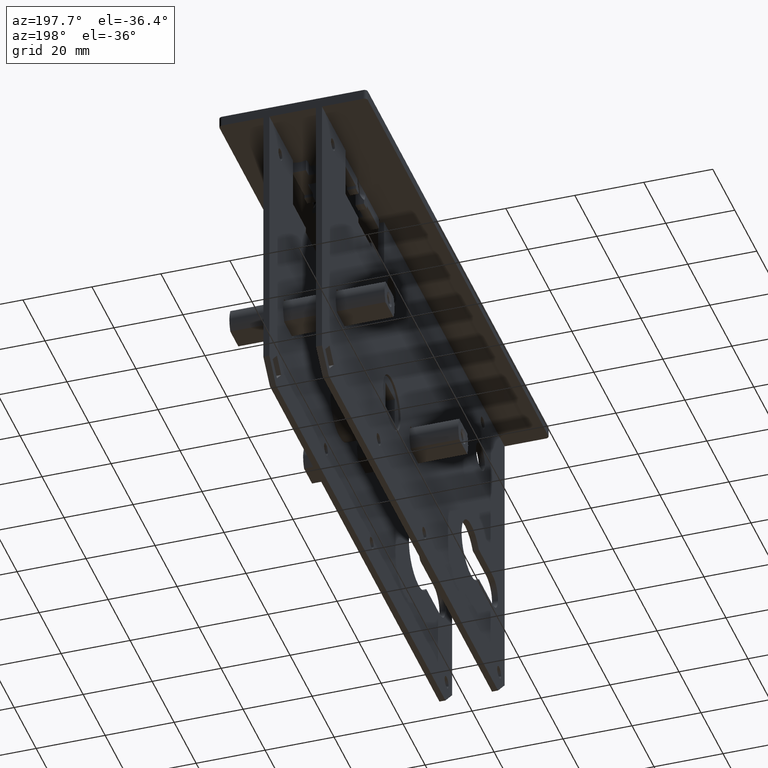
[diagram: clean part render]
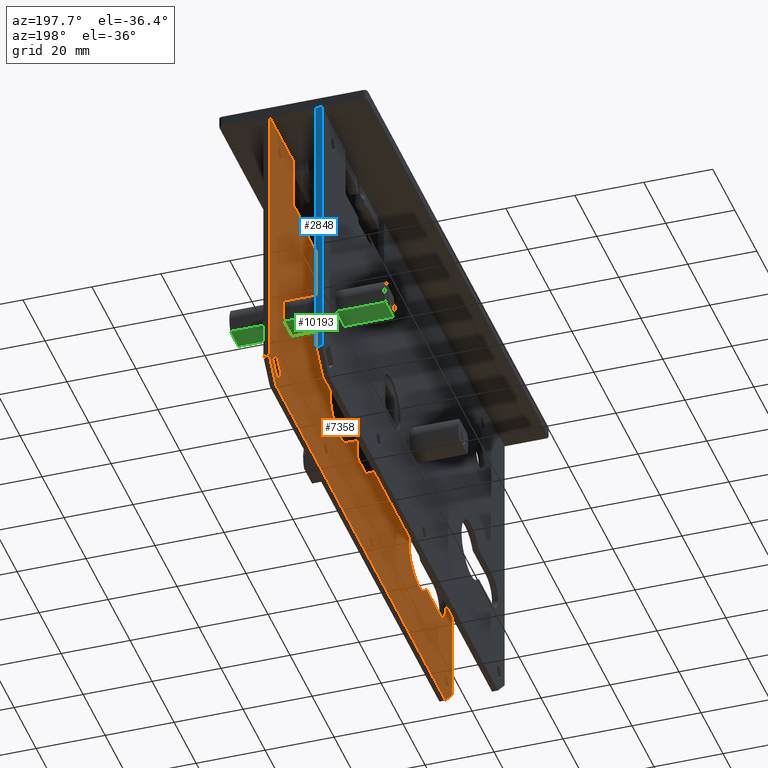
[diagram: same view with three faces highlighted in distinct colors, each labeled with its STEP entity id]
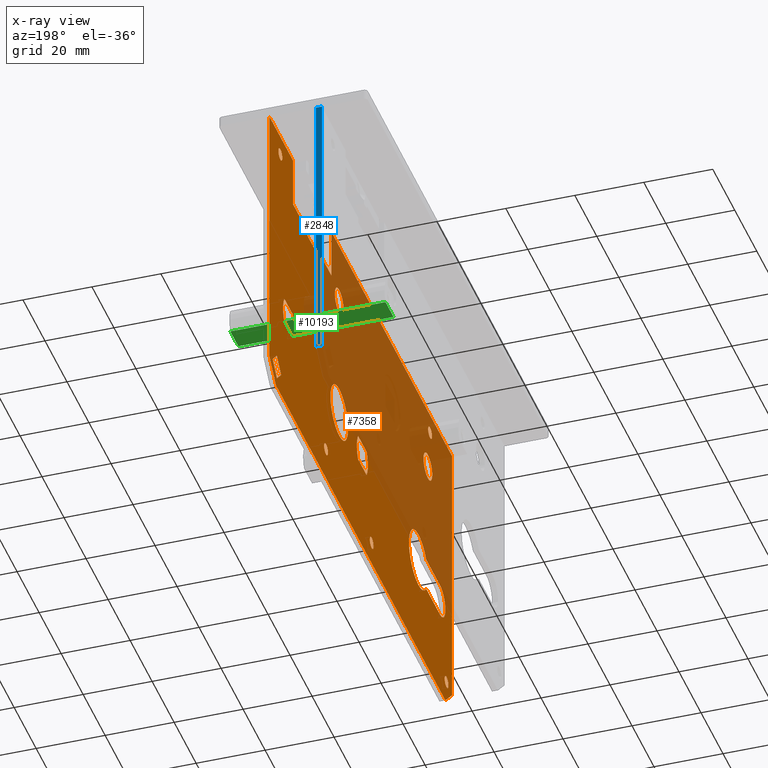
[diagram: x-ray of the same camera — body ghosted, the three highlighted faces saturated]
A machine part, auxiliary view with three faces highlighted in distinct colors.
The next image is the same camera in x-ray (body ghosted, the three faces saturated) — at least one of them is partly hidden behind the body in this view.
Their STEP definitions:

[orange] entity #7358 — the highlighted planar face has unit normal (1, -0, 0).
#51 = CARTESIAN_POINT ( 'NONE',  ( 6.749999999999965361, 23.49999999999997513, -20.50000000000000355 ) ) ;
#150 = VERTEX_POINT ( 'NONE', #4307 ) ;
#381 = LINE ( 'NONE', #5803, #14709 ) ;
#389 = CARTESIAN_POINT ( 'NONE',  ( 6.749999999999970690, 49.99500000000033850, -89.50000000000014211 ) ) ;
#474 = EDGE_CURVE ( 'NONE', #15892, #8402, #12096, .T. ) ;
#490 = EDGE_CURVE ( 'NONE', #2009, #9290, #9236, .T. ) ;
#494 = CARTESIAN_POINT ( 'NONE',  ( 6.749999999999975131, 62.49999999999997158, -58.49999999999999289 ) ) ;
#606 = VECTOR ( 'NONE', #4126, 1000.000000000000000 ) ;
#657 = VERTEX_POINT ( 'NONE', #1790 ) ;
#678 = CARTESIAN_POINT ( 'NONE',  ( 6.749999999999971578, 76.11091270347397142, -78.72182540694797126 ) ) ;
#795 = VERTEX_POINT ( 'NONE', #4496 ) ;
#893 = CARTESIAN_POINT ( 'NONE',  ( 6.749999999999936939, -71.90000000000001990, -53.45000000000000284 ) ) ;
#905 = CARTESIAN_POINT ( 'NONE',  ( 6.749999999999974243, 61.49500000000001876, -89.50000000000000000 ) ) ;
#986 = AXIS2_PLACEMENT_3D ( 'NONE', #19528, #13232, #8671 ) ;
#1052 = CARTESIAN_POINT ( 'NONE',  ( 6.749999999999979572, 82.99999999999998579, -1.500000000000000000 ) ) ;
#1063 = ORIENTED_EDGE ( 'NONE', *, *, #12396, .T. ) ;
#1261 = CIRCLE ( 'NONE', #13779, 1.750000000000001554 ) ;
#1327 = EDGE_CURVE ( 'NONE', #3062, #11553, #6106, .T. ) ;
#1359 = CARTESIAN_POINT ( 'NONE',  ( 6.749999999999971578, 26.49500000000001876, -1.500000000000000000 ) ) ;
#1414 = PLANE ( 'NONE',  #12225 ) ;
#1440 = DIRECTION ( 'NONE',  ( 1.000000000000000000, -2.823311865109897276E-16, 0.000000000000000000 ) ) ;
#1454 = CARTESIAN_POINT ( 'NONE',  ( 6.749999999999960920, -83.00000000000001421, -1.500000000000000000 ) ) ;
#1478 = CARTESIAN_POINT ( 'NONE',  ( 6.749999999999967137, 37.99500000000001876, -89.50000000000000000 ) ) ;
#1527 = VERTEX_POINT ( 'NONE', #13555 ) ;
#1532 = EDGE_LOOP ( 'NONE', ( #8050, #9930, #16112, #18015, #16478, #1572, #3832, #16464, #11852, #3412, #16233, #4765, #11090, #9143 ) ) ;
#1572 = ORIENTED_EDGE ( 'NONE', *, *, #9806, .F. ) ;
#1718 = DIRECTION ( 'NONE',  ( 1.000000000000000000, -2.823311865109897276E-16, 0.000000000000000000 ) ) ;
#1750 = CARTESIAN_POINT ( 'NONE',  ( 6.749999999999980460, 84.94454364826299297, -87.55545635173699281 ) ) ;
#1760 = VECTOR ( 'NONE', #11364, 1000.000000000000000 ) ;
#1778 = LINE ( 'NONE', #905, #6083 ) ;
#1790 = CARTESIAN_POINT ( 'NONE',  ( 6.749999999999978684, 74.75000000000000000, -7.500000000000007105 ) ) ;
#1845 = EDGE_CURVE ( 'NONE', #8527, #8527, #9919, .T. ) ;
#1888 = CARTESIAN_POINT ( 'NONE',  ( 6.749999999999971578, 26.49500000000001876, -1.500000000000000000 ) ) ;
#1942 = DIRECTION ( 'NONE',  ( 9.505768168282422298E-17, 1.000000000000000000, -0.000000000000000000 ) ) ;
#1957 = EDGE_CURVE ( 'NONE', #657, #657, #16555, .T. ) ;
#1962 = CARTESIAN_POINT ( 'NONE',  ( 6.749999999999979572, 82.99999999999997158, -18.09999999999999076 ) ) ;
#1990 = EDGE_LOOP ( 'NONE', ( #4938 ) ) ;
#2009 = VERTEX_POINT ( 'NONE', #10072 ) ;
#2057 = EDGE_CURVE ( 'NONE', #4301, #8471, #1778, .T. ) ;
#2114 = DIRECTION ( 'NONE',  ( 1.000000000000000000, -2.823311865109897276E-16, 0.000000000000000000 ) ) ;
#2165 = CARTESIAN_POINT ( 'NONE',  ( 6.749999999999975131, 500000.0000000000582, -16.50000000000000000 ) ) ;
#2177 = ORIENTED_EDGE ( 'NONE', *, *, #9465, .T. ) ;
#2237 = CIRCLE ( 'NONE', #14282, 8.000000000000007105 ) ;
#2314 = DIRECTION ( 'NONE',  ( -0.000000000000000000, -0.000000000000000000, 1.000000000000000000 ) ) ;
#2380 = DIRECTION ( 'NONE',  ( 4.956352788505158337E-16, 1.000000000000000000, 0.000000000000000000 ) ) ;
#2414 = CARTESIAN_POINT ( 'NONE',  ( 6.749999999999960920, -83.00000000000001421, -83.49999999999994316 ) ) ;
#2415 = DIRECTION ( 'NONE',  ( -1.996382965223647656E-16, -0.7071067811865474617, -0.7071067811865474617 ) ) ;
#2418 = FACE_BOUND ( 'NONE', #6755, .T. ) ;
#2455 = CARTESIAN_POINT ( 'NONE',  ( 6.749999999999933387, -71.90000000000000568, -63.54999999999999716 ) ) ;
#2493 = EDGE_CURVE ( 'NONE', #8471, #15010, #14440, .T. ) ;
#2542 = VERTEX_POINT ( 'NONE', #7417 ) ;
#2611 = DIRECTION ( 'NONE',  ( 2.823311865109897276E-16, 1.000000000000000000, 1.766429458238740716E-15 ) ) ;
#2766 = ORIENTED_EDGE ( 'NONE', *, *, #14645, .T. ) ;
#2783 = EDGE_CURVE ( 'NONE', #150, #13892, #6335, .T. ) ;
#2807 = ORIENTED_EDGE ( 'NONE', *, *, #17330, .T. ) ;
#2907 = FACE_BOUND ( 'NONE', #7556, .T. ) ;
#3003 = DIRECTION ( 'NONE',  ( 2.823311865109897276E-16, 1.000000000000000000, 0.000000000000000000 ) ) ;
#3062 = VERTEX_POINT ( 'NONE', #3238 ) ;
#3100 = CARTESIAN_POINT ( 'NONE',  ( 6.749999999999941380, -61.25000000000001421, -7.500000000000007105 ) ) ;
#3184 = DIRECTION ( 'NONE',  ( 0.000000000000000000, 0.000000000000000000, -1.000000000000000000 ) ) ;
#3197 = CARTESIAN_POINT ( 'NONE',  ( 6.749999999999978684, 76.99999999999995737, -89.50000000000000000 ) ) ;
#3223 = ORIENTED_EDGE ( 'NONE', *, *, #19527, .T. ) ;
#3238 = CARTESIAN_POINT ( 'NONE',  ( 6.749999999999976907, 72.22182540694797126, -82.61091270347398563 ) ) ;
#3304 = EDGE_CURVE ( 'NONE', #795, #19014, #2237, .T. ) ;
#3311 = CARTESIAN_POINT ( 'NONE',  ( 6.749999999999964473, 19.49999999999997513, -20.50000000000000355 ) ) ;
#3370 = CARTESIAN_POINT ( 'NONE',  ( 6.749999999999979572, 82.99999999999998579, -53.45000000000000284 ) ) ;
#3375 = EDGE_CURVE ( 'NONE', #11553, #19650, #11809, .T. ) ;
#3412 = ORIENTED_EDGE ( 'NONE', *, *, #14162, .T. ) ;
#3591 = DIRECTION ( 'NONE',  ( 4.956352788505173129E-16, 1.000000000000000000, 0.000000000000000000 ) ) ;
#3599 = CARTESIAN_POINT ( 'NONE',  ( 6.749999999999936939, -78.00000000000002842, -82.49999999999998579 ) ) ;
#3633 = CARTESIAN_POINT ( 'NONE',  ( 6.749999999999975131, 500000.0000000000582, -16.50000000000000000 ) ) ;
#3686 = LINE ( 'NONE', #1478, #13727 ) ;
#3700 = VERTEX_POINT ( 'NONE', #3197 ) ;
#3712 = CIRCLE ( 'NONE', #17933, 4.000000000000000000 ) ;
#3732 = DIRECTION ( 'NONE',  ( -6.721593132179719275E-17, -0.7071067811865466846, 0.7071067811865483499 ) ) ;
#3778 = DIRECTION ( 'NONE',  ( 1.000000000000000000, -2.823311865109897276E-16, 0.000000000000000000 ) ) ;
#3782 = CIRCLE ( 'NONE', #8613, 1.750000000000001554 ) ;
#3815 = EDGE_CURVE ( 'NONE', #8651, #14776, #5810, .T. ) ;
#3832 = ORIENTED_EDGE ( 'NONE', *, *, #7121, .T. ) ;
#4000 = CARTESIAN_POINT ( 'NONE',  ( 6.749999999999933387, -59.52281994643179530, -53.45000000000000284 ) ) ;
#4034 = ORIENTED_EDGE ( 'NONE', *, *, #3375, .T. ) ;
#4069 = LINE ( 'NONE', #1962, #13151 ) ;
#4126 = DIRECTION ( 'NONE',  ( 2.823311865109897276E-16, 1.000000000000000000, -0.000000000000000000 ) ) ;
#4133 = VECTOR ( 'NONE', #4781, 1000.000000000000000 ) ;
#4157 = LINE ( 'NONE', #1750, #15864 ) ;
#4162 = EDGE_LOOP ( 'NONE', ( #8602, #15487, #4368, #9037 ) ) ;
#4301 = VERTEX_POINT ( 'NONE', #10220 ) ;
#4307 = CARTESIAN_POINT ( 'NONE',  ( 6.749999999999954703, -5.428203230275513214, -54.49999999999998579 ) ) ;
#4353 = AXIS2_PLACEMENT_3D ( 'NONE', #494, #3778, #9719 ) ;
#4368 = ORIENTED_EDGE ( 'NONE', *, *, #12690, .T. ) ;
#4496 = CARTESIAN_POINT ( 'NONE',  ( 6.749999999999974243, 61.57179676972446458, -54.49999999999999289 ) ) ;
#4505 = CARTESIAN_POINT ( 'NONE',  ( 6.749999999999960920, -83.00000000000001421, -89.50000000000000000 ) ) ;
#4565 = CARTESIAN_POINT ( 'NONE',  ( 6.749999999999979572, 82.99999999999998579, -83.49999999999992895 ) ) ;
#4606 = EDGE_LOOP ( 'NONE', ( #3223 ) ) ;
#4610 = CARTESIAN_POINT ( 'NONE',  ( 6.749999999999940492, -61.00000000000001421, -20.50000000000000355 ) ) ;
#4710 = DIRECTION ( 'NONE',  ( -1.996382965223647656E-16, -0.7071067811865474617, 0.7071067811865474617 ) ) ;
#4739 = CARTESIAN_POINT ( 'NONE',  ( 6.749999999999978684, 68.49999999999997158, -58.49999999999999289 ) ) ;
#4765 = ORIENTED_EDGE ( 'NONE', *, *, #474, .F. ) ;
#4781 = DIRECTION ( 'NONE',  ( -1.224416343102500483E-30, -4.336808689942016158E-15, 1.000000000000000000 ) ) ;
#4852 = CIRCLE ( 'NONE', #16770, 1.749999999999996447 ) ;
#4938 = ORIENTED_EDGE ( 'NONE', *, *, #5134, .T. ) ;
#5011 = LINE ( 'NONE', #3633, #7870 ) ;
#5134 = EDGE_CURVE ( 'NONE', #17808, #17808, #3712, .T. ) ;
#5152 = CARTESIAN_POINT ( 'NONE',  ( 6.749999999999957367, -4.500000000000025757, -58.50000000000000000 ) ) ;
#5180 = DIRECTION ( 'NONE',  ( 3.435095992033281961E-16, 1.000000000000000000, 0.000000000000000000 ) ) ;
#5204 = LINE ( 'NONE', #1888, #6875 ) ;
#5297 = EDGE_CURVE ( 'NONE', #9033, #17756, #10387, .T. ) ;
#5367 = DIRECTION ( 'NONE',  ( 1.000000000000000000, -2.823311865109897276E-16, 0.000000000000000000 ) ) ;
#5481 = CARTESIAN_POINT ( 'NONE',  ( 6.749999999999968026, 69.42820323027548568, -54.49999999999999289 ) ) ;
#5611 = DIRECTION ( 'NONE',  ( -0.000000000000000000, -1.000000000000000000, -0.000000000000000000 ) ) ;
#5703 = EDGE_CURVE ( 'NONE', #7098, #7098, #1261, .T. ) ;
#5798 = DIRECTION ( 'NONE',  ( -2.823311865109897276E-16, -1.000000000000000000, 8.832147291193703580E-16 ) ) ;
#5803 = CARTESIAN_POINT ( 'NONE',  ( 6.749999999999979572, 82.99999999999998579, -89.50000000000000000 ) ) ;
#5810 = LINE ( 'NONE', #389, #4133 ) ;
#5825 = CARTESIAN_POINT ( 'NONE',  ( 6.749999999999979572, 82.99999999999998579, -89.50000000000000000 ) ) ;
#5859 = VECTOR ( 'NONE', #12125, 1000.000000000000000 ) ;
#5912 = VECTOR ( 'NONE', #10505, 1000.000000000000000 ) ;
#6005 = CARTESIAN_POINT ( 'NONE',  ( 6.749999999999964473, 19.49999999999997513, -58.50000000000000000 ) ) ;
#6015 = FACE_BOUND ( 'NONE', #19718, .T. ) ;
#6083 = VECTOR ( 'NONE', #2314, 1000.000000000000000 ) ;
#6106 = LINE ( 'NONE', #15737, #14242 ) ;
#6219 = CARTESIAN_POINT ( 'NONE',  ( 6.749999999999979572, 82.99999999999998579, -1.500000000000000000 ) ) ;
#6249 = VERTEX_POINT ( 'NONE', #4000 ) ;
#6335 = CIRCLE ( 'NONE', #12698, 8.000000000000000000 ) ;
#6505 = CARTESIAN_POINT ( 'NONE',  ( 6.749999999999946709, 2.428203230275482127, -54.49999999999999289 ) ) ;
#6577 = LINE ( 'NONE', #13482, #10856 ) ;
#6755 = EDGE_LOOP ( 'NONE', ( #4034, #2766, #1063, #16905 ) ) ;
#6800 = LINE ( 'NONE', #3370, #1760 ) ;
#6846 = CARTESIAN_POINT ( 'NONE',  ( 6.749999999999968026, 49.99500000000001876, -16.49999999999999645 ) ) ;
#6875 = VECTOR ( 'NONE', #1942, 1000.000000000000000 ) ;
#6907 = DIRECTION ( 'NONE',  ( 3.252606517456513302E-16, 1.000000000000000000, 0.000000000000000000 ) ) ;
#6921 = AXIS2_PLACEMENT_3D ( 'NONE', #14587, #17621, #5180 ) ;
#7050 = CIRCLE ( 'NONE', #16118, 8.000000000000000000 ) ;
#7098 = VERTEX_POINT ( 'NONE', #15388 ) ;
#7121 = EDGE_CURVE ( 'NONE', #16747, #3700, #15120, .T. ) ;
#7270 = CARTESIAN_POINT ( 'NONE',  ( 6.749999999999933387, -59.52281994643179530, -63.55000000000001137 ) ) ;
#7358 = ADVANCED_FACE ( 'NONE', ( #8146, #19160, #11729, #13428, #2907, #6015, #11028, #16972, #18665, #14619, #13164, #2418, #18170 ), #1414, .F. ) ;
#7417 = CARTESIAN_POINT ( 'NONE',  ( 6.749999999999968914, 33.24999999999997158, -79.50000000000000000 ) ) ;
#7556 = EDGE_LOOP ( 'NONE', ( #8702 ) ) ;
#7564 = VECTOR ( 'NONE', #14345, 1000.000000000000000 ) ;
#7594 = AXIS2_PLACEMENT_3D ( 'NONE', #12550, #12999, #2380 ) ;
#7639 = CARTESIAN_POINT ( 'NONE',  ( 6.749999999999974243, 61.49500000000001876, -1.500000000000000000 ) ) ;
#7677 = CARTESIAN_POINT ( 'NONE',  ( 6.749999999999954703, -8.250000000000026645, -82.49999999999998579 ) ) ;
#7681 = VERTEX_POINT ( 'NONE', #5481 ) ;
#7684 = DIRECTION ( 'NONE',  ( 1.000000000000000000, -2.823311865109897276E-16, 0.000000000000000000 ) ) ;
#7770 = LINE ( 'NONE', #4505, #5859 ) ;
#7870 = VECTOR ( 'NONE', #5611, 1000.000000000000000 ) ;
#7910 = ORIENTED_EDGE ( 'NONE', *, *, #12301, .T. ) ;
#7944 = EDGE_LOOP ( 'NONE', ( #2807, #18661, #9471, #15131 ) ) ;
#7957 = LINE ( 'NONE', #2165, #17713 ) ;
#7981 = EDGE_LOOP ( 'NONE', ( #12151, #2177, #13695, #7910 ) ) ;
#7985 = EDGE_CURVE ( 'NONE', #1527, #8651, #4069, .T. ) ;
#8050 = ORIENTED_EDGE ( 'NONE', *, *, #7985, .T. ) ;
#8146 = FACE_BOUND ( 'NONE', #1990, .T. ) ;
#8249 = CARTESIAN_POINT ( 'NONE',  ( 6.749999999999953815, -10.00000000000002309, -82.49999999999998579 ) ) ;
#8364 = DIRECTION ( 'NONE',  ( 1.000000000000000000, -2.823311865109897276E-16, 0.000000000000000000 ) ) ;
#8399 = EDGE_CURVE ( 'NONE', #7681, #795, #8597, .T. ) ;
#8402 = VERTEX_POINT ( 'NONE', #1359 ) ;
#8446 = ORIENTED_EDGE ( 'NONE', *, *, #1957, .T. ) ;
#8471 = VERTEX_POINT ( 'NONE', #7639 ) ;
#8527 = VERTEX_POINT ( 'NONE', #14900 ) ;
#8547 = ORIENTED_EDGE ( 'NONE', *, *, #1845, .T. ) ;
#8597 = LINE ( 'NONE', #10462, #16944 ) ;
#8602 = ORIENTED_EDGE ( 'NONE', *, *, #16276, .T. ) ;
#8613 = AXIS2_PLACEMENT_3D ( 'NONE', #9373, #13936, #11037 ) ;
#8651 = VERTEX_POINT ( 'NONE', #11104 ) ;
#8671 = DIRECTION ( 'NONE',  ( 3.008190998803709590E-16, 1.000000000000000000, 0.000000000000000000 ) ) ;
#8702 = ORIENTED_EDGE ( 'NONE', *, *, #5703, .T. ) ;
#8787 = CARTESIAN_POINT ( 'NONE',  ( 6.749999999999979572, 83.00000000000001421, -54.50000000000006395 ) ) ;
#9033 = VERTEX_POINT ( 'NONE', #9518 ) ;
#9037 = ORIENTED_EDGE ( 'NONE', *, *, #2783, .T. ) ;
#9143 = ORIENTED_EDGE ( 'NONE', *, *, #17625, .T. ) ;
#9209 = DIRECTION ( 'NONE',  ( 2.168404344971006896E-16, 1.000000000000000000, 0.000000000000000000 ) ) ;
#9236 = LINE ( 'NONE', #11239, #17567 ) ;
#9290 = VERTEX_POINT ( 'NONE', #2414 ) ;
#9294 = EDGE_CURVE ( 'NONE', #2542, #2542, #11650, .T. ) ;
#9350 = DIRECTION ( 'NONE',  ( 2.168404344971008868E-16, 1.000000000000000000, 0.000000000000000000 ) ) ;
#9373 = CARTESIAN_POINT ( 'NONE',  ( 6.749999999999940492, -63.00000000000001421, -7.500000000000007105 ) ) ;
#9465 = EDGE_CURVE ( 'NONE', #12713, #6249, #18319, .T. ) ;
#9471 = ORIENTED_EDGE ( 'NONE', *, *, #8399, .T. ) ;
#9475 = DIRECTION ( 'NONE',  ( 3.252606517456510344E-16, 1.000000000000000000, 0.000000000000000000 ) ) ;
#9518 = CARTESIAN_POINT ( 'NONE',  ( 6.749999999999946709, 2.428203230275483016, -62.50000000000000000 ) ) ;
#9719 = DIRECTION ( 'NONE',  ( 3.252606517456510344E-16, 1.000000000000000000, 0.000000000000000000 ) ) ;
#9806 = EDGE_CURVE ( 'NONE', #16747, #15010, #17327, .T. ) ;
#9869 = LINE ( 'NONE', #8787, #12250 ) ;
#9919 = CIRCLE ( 'NONE', #17792, 4.000000000000003553 ) ;
#9930 = ORIENTED_EDGE ( 'NONE', *, *, #3815, .T. ) ;
#10053 = CARTESIAN_POINT ( 'NONE',  ( 6.749999999999978684, 76.99999999999995737, -89.50000000000000000 ) ) ;
#10069 = VERTEX_POINT ( 'NONE', #2455 ) ;
#10072 = CARTESIAN_POINT ( 'NONE',  ( 6.749999999999961808, -76.99999999999998579, -89.50000000000000000 ) ) ;
#10220 = CARTESIAN_POINT ( 'NONE',  ( 6.749999999999975131, 61.49500000009311407, -16.50000000000000000 ) ) ;
#10226 = AXIS2_PLACEMENT_3D ( 'NONE', #15979, #8364, #14787 ) ;
#10253 = ORIENTED_EDGE ( 'NONE', *, *, #11284, .T. ) ;
#10310 = EDGE_LOOP ( 'NONE', ( #10253 ) ) ;
#10366 = LINE ( 'NONE', #10370, #12026 ) ;
#10370 = CARTESIAN_POINT ( 'NONE',  ( 6.749999999999977796, 74.16636905521096423, -80.66636905521097844 ) ) ;
#10387 = CIRCLE ( 'NONE', #18607, 8.000000000000000000 ) ;
#10392 = EDGE_LOOP ( 'NONE', ( #8547 ) ) ;
#10462 = CARTESIAN_POINT ( 'NONE',  ( 6.749999999999979572, 82.99999999999998579, -54.49999999999999289 ) ) ;
#10476 = VERTEX_POINT ( 'NONE', #3100 ) ;
#10502 = EDGE_LOOP ( 'NONE', ( #8446 ) ) ;
#10505 = DIRECTION ( 'NONE',  ( -0.000000000000000000, -0.000000000000000000, 1.000000000000000000 ) ) ;
#10786 = CARTESIAN_POINT ( 'NONE',  ( 6.749999999999968026, 76.11091270347397142, -86.50000000000000000 ) ) ;
#10809 = CARTESIAN_POINT ( 'NONE',  ( 6.749999999999978684, 78.05545635173697860, -84.55545635173699281 ) ) ;
#10856 = VECTOR ( 'NONE', #3003, 1000.000000000000000 ) ;
#11028 = FACE_BOUND ( 'NONE', #11260, .T. ) ;
#11037 = DIRECTION ( 'NONE',  ( 4.956352788505158337E-16, 1.000000000000000000, 0.000000000000000000 ) ) ;
#11060 = CIRCLE ( 'NONE', #6921, 5.049999999999998934 ) ;
#11079 = DIRECTION ( 'NONE',  ( 3.252606517456513302E-16, 1.000000000000000000, 0.000000000000000000 ) ) ;
#11090 = ORIENTED_EDGE ( 'NONE', *, *, #16250, .F. ) ;
#11104 = CARTESIAN_POINT ( 'NONE',  ( 6.749999999999960920, 49.99500000000002586, -18.09999999999999787 ) ) ;
#11230 = EDGE_CURVE ( 'NONE', #2009, #3700, #381, .T. ) ;
#11239 = CARTESIAN_POINT ( 'NONE',  ( 6.749999999999961808, -76.99999999999998579, -89.50000000000000000 ) ) ;
#11260 = EDGE_LOOP ( 'NONE', ( #11614 ) ) ;
#11284 = EDGE_CURVE ( 'NONE', #13594, #13594, #7050, .T. ) ;
#11364 = DIRECTION ( 'NONE',  ( -2.823311865109897276E-16, -1.000000000000000000, 0.000000000000000000 ) ) ;
#11487 = CARTESIAN_POINT ( 'NONE',  ( 6.749999999999957367, 1.499999999999974465, -58.50000000000000000 ) ) ;
#11553 = VERTEX_POINT ( 'NONE', #10786 ) ;
#11614 = ORIENTED_EDGE ( 'NONE', *, *, #9294, .T. ) ;
#11650 = CIRCLE ( 'NONE', #10226, 1.749999999999994671 ) ;
#11709 = DIRECTION ( 'NONE',  ( -1.996382965223642972E-16, -0.7071067811865459074, -0.7071067811865491270 ) ) ;
#11729 = FACE_BOUND ( 'NONE', #7981, .T. ) ;
#11809 = LINE ( 'NONE', #10809, #13973 ) ;
#11852 = ORIENTED_EDGE ( 'NONE', *, *, #490, .T. ) ;
#12026 = VECTOR ( 'NONE', #2415, 1000.000000000000114 ) ;
#12096 = LINE ( 'NONE', #15989, #7564 ) ;
#12125 = DIRECTION ( 'NONE',  ( -0.000000000000000000, -0.000000000000000000, 1.000000000000000000 ) ) ;
#12151 = ORIENTED_EDGE ( 'NONE', *, *, #17697, .T. ) ;
#12225 = AXIS2_PLACEMENT_3D ( 'NONE', #16892, #12231, #13801 ) ;
#12231 = DIRECTION ( 'NONE',  ( 1.000000000000000000, -2.823311865109897276E-16, 0.000000000000000000 ) ) ;
#12250 = VECTOR ( 'NONE', #5798, 1000.000000000000000 ) ;
#12301 = EDGE_CURVE ( 'NONE', #14508, #10069, #11060, .T. ) ;
#12396 = EDGE_CURVE ( 'NONE', #16602, #3062, #10366, .T. ) ;
#12550 = CARTESIAN_POINT ( 'NONE',  ( 6.749999999999978684, 73.00000000000000000, -7.500000000000007105 ) ) ;
#12690 = EDGE_CURVE ( 'NONE', #17756, #150, #9869, .T. ) ;
#12698 = AXIS2_PLACEMENT_3D ( 'NONE', #11487, #5367, #6907 ) ;
#12713 = VERTEX_POINT ( 'NONE', #7270 ) ;
#12999 = DIRECTION ( 'NONE',  ( 1.000000000000000000, -2.823311865109897276E-16, 0.000000000000000000 ) ) ;
#13151 = VECTOR ( 'NONE', #14035, 1000.000000000000000 ) ;
#13164 = FACE_BOUND ( 'NONE', #4162, .T. ) ;
#13177 = EDGE_CURVE ( 'NONE', #18662, #7681, #18191, .T. ) ;
#13232 = DIRECTION ( 'NONE',  ( 1.000000000000000000, -2.823311865109897276E-16, 0.000000000000000000 ) ) ;
#13428 = FACE_BOUND ( 'NONE', #10310, .T. ) ;
#13482 = CARTESIAN_POINT ( 'NONE',  ( 6.749999999999979572, 82.99999999999998579, -62.49999999999998579 ) ) ;
#13533 = VERTEX_POINT ( 'NONE', #1454 ) ;
#13555 = CARTESIAN_POINT ( 'NONE',  ( 6.749999999999960920, 37.99500000000001876, -18.10000000000000142 ) ) ;
#13594 = VERTEX_POINT ( 'NONE', #17871 ) ;
#13601 = CARTESIAN_POINT ( 'NONE',  ( 6.749999999999971578, 79.99999999999998579, -82.61091270347398563 ) ) ;
#13695 = ORIENTED_EDGE ( 'NONE', *, *, #14758, .T. ) ;
#13727 = VECTOR ( 'NONE', #3184, 1000.000000000000000 ) ;
#13779 = AXIS2_PLACEMENT_3D ( 'NONE', #3599, #2114, #17430 ) ;
#13801 = DIRECTION ( 'NONE',  ( 2.823311865109897276E-16, 1.000000000000000000, 0.000000000000000000 ) ) ;
#13892 = VERTEX_POINT ( 'NONE', #18179 ) ;
#13936 = DIRECTION ( 'NONE',  ( 1.000000000000000000, -2.823311865109897276E-16, 0.000000000000000000 ) ) ;
#13973 = VECTOR ( 'NONE', #18672, 1000.000000000000114 ) ;
#14006 = DIRECTION ( 'NONE',  ( 2.823311865109897276E-16, 1.000000000000000000, 0.000000000000000000 ) ) ;
#14035 = DIRECTION ( 'NONE',  ( 2.823311865109897276E-16, 1.000000000000000000, 2.891205793294678326E-16 ) ) ;
#14162 = EDGE_CURVE ( 'NONE', #9290, #13533, #7770, .T. ) ;
#14242 = VECTOR ( 'NONE', #17320, 1000.000000000000114 ) ;
#14282 = AXIS2_PLACEMENT_3D ( 'NONE', #4739, #1718, #9475 ) ;
#14345 = DIRECTION ( 'NONE',  ( -0.000000000000000000, -0.000000000000000000, 1.000000000000000000 ) ) ;
#14440 = LINE ( 'NONE', #1052, #606 ) ;
#14508 = VERTEX_POINT ( 'NONE', #893 ) ;
#14544 = VERTEX_POINT ( 'NONE', #7677 ) ;
#14587 = CARTESIAN_POINT ( 'NONE',  ( 6.749999999999936939, -71.90000000000000568, -58.50000000000000000 ) ) ;
#14619 = FACE_BOUND ( 'NONE', #7944, .T. ) ;
#14645 = EDGE_CURVE ( 'NONE', #19650, #16602, #4157, .T. ) ;
#14709 = VECTOR ( 'NONE', #16506, 1000.000000000000000 ) ;
#14758 = EDGE_CURVE ( 'NONE', #6249, #14508, #6800, .T. ) ;
#14776 = VERTEX_POINT ( 'NONE', #6846 ) ;
#14787 = DIRECTION ( 'NONE',  ( 4.956352788505178059E-16, 1.000000000000000000, 0.000000000000000000 ) ) ;
#14872 = VECTOR ( 'NONE', #11709, 1000.000000000000114 ) ;
#14900 = CARTESIAN_POINT ( 'NONE',  ( 6.749999999999941380, -57.00000000000000711, -20.50000000000000355 ) ) ;
#15010 = VERTEX_POINT ( 'NONE', #6219 ) ;
#15120 = LINE ( 'NONE', #10053, #14872 ) ;
#15131 = ORIENTED_EDGE ( 'NONE', *, *, #3304, .T. ) ;
#15140 = VECTOR ( 'NONE', #2611, 1000.000000000000000 ) ;
#15388 = CARTESIAN_POINT ( 'NONE',  ( 6.749999999999937828, -76.25000000000002842, -82.49999999999998579 ) ) ;
#15487 = ORIENTED_EDGE ( 'NONE', *, *, #5297, .T. ) ;
#15506 = CARTESIAN_POINT ( 'NONE',  ( 6.749999999999979572, 82.99999999999998579, -63.55000000000001137 ) ) ;
#15737 = CARTESIAN_POINT ( 'NONE',  ( 6.749999999999978684, 81.05545635173697860, -91.44454364826300719 ) ) ;
#15864 = VECTOR ( 'NONE', #4710, 1000.000000000000114 ) ;
#15892 = VERTEX_POINT ( 'NONE', #19093 ) ;
#15979 = CARTESIAN_POINT ( 'NONE',  ( 6.749999999999968026, 31.49999999999997868, -79.50000000000000000 ) ) ;
#15989 = CARTESIAN_POINT ( 'NONE',  ( 6.749999999999971578, 26.49500000000001876, -89.50000000000000000 ) ) ;
#16086 = EDGE_CURVE ( 'NONE', #14544, #14544, #4852, .T. ) ;
#16112 = ORIENTED_EDGE ( 'NONE', *, *, #18401, .F. ) ;
#16118 = AXIS2_PLACEMENT_3D ( 'NONE', #6005, #1440, #18122 ) ;
#16233 = ORIENTED_EDGE ( 'NONE', *, *, #19539, .T. ) ;
#16250 = EDGE_CURVE ( 'NONE', #19119, #15892, #7957, .T. ) ;
#16276 = EDGE_CURVE ( 'NONE', #13892, #9033, #19195, .T. ) ;
#16464 = ORIENTED_EDGE ( 'NONE', *, *, #11230, .F. ) ;
#16478 = ORIENTED_EDGE ( 'NONE', *, *, #2493, .T. ) ;
#16486 = DIRECTION ( 'NONE',  ( -2.823311865109897276E-16, -1.000000000000000000, 0.000000000000000000 ) ) ;
#16506 = DIRECTION ( 'NONE',  ( 2.823311865109897276E-16, 1.000000000000000000, -0.000000000000000000 ) ) ;
#16555 = CIRCLE ( 'NONE', #7594, 1.750000000000001554 ) ;
#16602 = VERTEX_POINT ( 'NONE', #678 ) ;
#16747 = VERTEX_POINT ( 'NONE', #4565 ) ;
#16770 = AXIS2_PLACEMENT_3D ( 'NONE', #8249, #18803, #3591 ) ;
#16787 = LINE ( 'NONE', #15506, #17734 ) ;
#16892 = CARTESIAN_POINT ( 'NONE',  ( 6.749999999999979572, 82.99999999999998579, -89.50000000000000000 ) ) ;
#16905 = ORIENTED_EDGE ( 'NONE', *, *, #1327, .T. ) ;
#16933 = DIRECTION ( 'NONE',  ( 1.000000000000000000, -2.823311865109897276E-16, 0.000000000000000000 ) ) ;
#16944 = VECTOR ( 'NONE', #16486, 1000.000000000000000 ) ;
#16972 = FACE_BOUND ( 'NONE', #10502, .T. ) ;
#17320 = DIRECTION ( 'NONE',  ( 1.996382965223647656E-16, 0.7071067811865474617, -0.7071067811865474617 ) ) ;
#17327 = LINE ( 'NONE', #5825, #5912 ) ;
#17330 = EDGE_CURVE ( 'NONE', #19014, #18662, #6577, .T. ) ;
#17430 = DIRECTION ( 'NONE',  ( 4.956352788505158337E-16, 1.000000000000000000, 0.000000000000000000 ) ) ;
#17567 = VECTOR ( 'NONE', #3732, 1000.000000000000000 ) ;
#17621 = DIRECTION ( 'NONE',  ( 1.000000000000000000, -2.823311865109897276E-16, 0.000000000000000000 ) ) ;
#17625 = EDGE_CURVE ( 'NONE', #19119, #1527, #3686, .T. ) ;
#17696 = ORIENTED_EDGE ( 'NONE', *, *, #16086, .T. ) ;
#17697 = EDGE_CURVE ( 'NONE', #10069, #12713, #16787, .T. ) ;
#17713 = VECTOR ( 'NONE', #19275, 1000.000000000000000 ) ;
#17734 = VECTOR ( 'NONE', #14006, 1000.000000000000000 ) ;
#17756 = VERTEX_POINT ( 'NONE', #6505 ) ;
#17792 = AXIS2_PLACEMENT_3D ( 'NONE', #4610, #16933, #9209 ) ;
#17808 = VERTEX_POINT ( 'NONE', #51 ) ;
#17871 = CARTESIAN_POINT ( 'NONE',  ( 6.749999999999967137, 27.49999999999997513, -58.50000000000000000 ) ) ;
#17933 = AXIS2_PLACEMENT_3D ( 'NONE', #3311, #7684, #9350 ) ;
#18015 = ORIENTED_EDGE ( 'NONE', *, *, #2057, .T. ) ;
#18122 = DIRECTION ( 'NONE',  ( 3.252606517456513302E-16, 1.000000000000000000, 0.000000000000000000 ) ) ;
#18170 = FACE_OUTER_BOUND ( 'NONE', #1532, .T. ) ;
#18179 = CARTESIAN_POINT ( 'NONE',  ( 6.749999999999953815, -5.428203230275524760, -62.50000000000001421 ) ) ;
#18191 = CIRCLE ( 'NONE', #4353, 8.000000000000007105 ) ;
#18319 = CIRCLE ( 'NONE', #986, 8.650000000000005684 ) ;
#18376 = CARTESIAN_POINT ( 'NONE',  ( 6.749999999999975131, 37.99500000002353772, -16.50000000000000000 ) ) ;
#18398 = CARTESIAN_POINT ( 'NONE',  ( 6.749999999999968026, 69.42820323027548568, -62.49999999999998579 ) ) ;
#18401 = EDGE_CURVE ( 'NONE', #4301, #14776, #5011, .T. ) ;
#18607 = AXIS2_PLACEMENT_3D ( 'NONE', #5152, #18896, #11079 ) ;
#18612 = CARTESIAN_POINT ( 'NONE',  ( 6.749999999999975131, 61.57179676972446458, -62.49999999999998579 ) ) ;
#18661 = ORIENTED_EDGE ( 'NONE', *, *, #13177, .T. ) ;
#18662 = VERTEX_POINT ( 'NONE', #18398 ) ;
#18665 = FACE_BOUND ( 'NONE', #4606, .T. ) ;
#18672 = DIRECTION ( 'NONE',  ( 1.996382965223647656E-16, 0.7071067811865474617, 0.7071067811865474617 ) ) ;
#18803 = DIRECTION ( 'NONE',  ( 1.000000000000000000, -2.823311865109897276E-16, 0.000000000000000000 ) ) ;
#18896 = DIRECTION ( 'NONE',  ( 1.000000000000000000, -2.823311865109897276E-16, 0.000000000000000000 ) ) ;
#19014 = VERTEX_POINT ( 'NONE', #18612 ) ;
#19093 = CARTESIAN_POINT ( 'NONE',  ( 6.749999999999971578, 26.49500000000001876, -16.50000000000000000 ) ) ;
#19119 = VERTEX_POINT ( 'NONE', #18376 ) ;
#19160 = FACE_BOUND ( 'NONE', #10392, .T. ) ;
#19195 = LINE ( 'NONE', #19597, #15140 ) ;
#19275 = DIRECTION ( 'NONE',  ( -0.000000000000000000, -1.000000000000000000, -0.000000000000000000 ) ) ;
#19527 = EDGE_CURVE ( 'NONE', #10476, #10476, #3782, .T. ) ;
#19528 = CARTESIAN_POINT ( 'NONE',  ( 6.749999999999943157, -52.50000000000002132, -58.50000000000000000 ) ) ;
#19539 = EDGE_CURVE ( 'NONE', #13533, #8402, #5204, .T. ) ;
#19597 = CARTESIAN_POINT ( 'NONE',  ( 6.749999999999979572, 82.99999999999994316, -62.49999999999985789 ) ) ;
#19650 = VERTEX_POINT ( 'NONE', #13601 ) ;
#19718 = EDGE_LOOP ( 'NONE', ( #17696 ) ) ;

[blue] entity #2848 — the highlighted planar face has unit normal (0, -1, 0).
#1 = VECTOR ( 'NONE', #19373, 1000.000000000000000 ) ;
#98 = ORIENTED_EDGE ( 'NONE', *, *, #16468, .T. ) ;
#461 = LINE ( 'NONE', #2656, #1 ) ;
#503 = CARTESIAN_POINT ( 'NONE',  ( -6.749999999999979572, 82.99999999999998579, -1.500000000000000000 ) ) ;
#1206 = CARTESIAN_POINT ( 'NONE',  ( -8.499999999999980460, 82.99999999999998579, -89.50000000000000000 ) ) ;
#2227 = LINE ( 'NONE', #12492, #8435 ) ;
#2451 = CARTESIAN_POINT ( 'NONE',  ( -6.749999999999979572, 82.99999999999998579, -89.50000000000000000 ) ) ;
#2656 = CARTESIAN_POINT ( 'NONE',  ( -8.499999999999980460, 82.99999999999998579, -89.50000000000000000 ) ) ;
#2848 = ADVANCED_FACE ( 'NONE', ( #5860 ), #4085, .F. ) ;
#3605 = VERTEX_POINT ( 'NONE', #3930 ) ;
#3930 = CARTESIAN_POINT ( 'NONE',  ( -8.499999999999980460, 82.99999999999998579, -83.49999999999992895 ) ) ;
#4085 = PLANE ( 'NONE',  #16255 ) ;
#4652 = VECTOR ( 'NONE', #13139, 1000.000000000000000 ) ;
#5458 = ORIENTED_EDGE ( 'NONE', *, *, #18424, .T. ) ;
#5766 = EDGE_LOOP ( 'NONE', ( #13665, #98, #5458, #8707 ) ) ;
#5860 = FACE_OUTER_BOUND ( 'NONE', #5766, .T. ) ;
#6368 = DIRECTION ( 'NONE',  ( -1.000000000000000000, 0.000000000000000000, 0.000000000000000000 ) ) ;
#6454 = VERTEX_POINT ( 'NONE', #503 ) ;
#8435 = VECTOR ( 'NONE', #6368, 1000.000000000000000 ) ;
#8689 = LINE ( 'NONE', #2451, #4652 ) ;
#8707 = ORIENTED_EDGE ( 'NONE', *, *, #9067, .T. ) ;
#9067 = EDGE_CURVE ( 'NONE', #17870, #6454, #17663, .T. ) ;
#9375 = CARTESIAN_POINT ( 'NONE',  ( -8.499999999999980460, 82.99999999999998579, -1.500000000000000000 ) ) ;
#11161 = CARTESIAN_POINT ( 'NONE',  ( -8.499999999999980460, 82.99999999999998579, -1.500000000000000000 ) ) ;
#12492 = CARTESIAN_POINT ( 'NONE',  ( -8.499999999999980460, 82.99999999999998579, -83.49999999999992895 ) ) ;
#12507 = VERTEX_POINT ( 'NONE', #18968 ) ;
#13139 = DIRECTION ( 'NONE',  ( -0.000000000000000000, -0.000000000000000000, 1.000000000000000000 ) ) ;
#13652 = VECTOR ( 'NONE', #14015, 1000.000000000000000 ) ;
#13665 = ORIENTED_EDGE ( 'NONE', *, *, #17238, .F. ) ;
#14015 = DIRECTION ( 'NONE',  ( 1.000000000000000000, 0.000000000000000000, 0.000000000000000000 ) ) ;
#14654 = DIRECTION ( 'NONE',  ( 0.000000000000000000, -1.000000000000000000, 0.000000000000000000 ) ) ;
#16255 = AXIS2_PLACEMENT_3D ( 'NONE', #1206, #14654, #17676 ) ;
#16468 = EDGE_CURVE ( 'NONE', #12507, #3605, #2227, .T. ) ;
#17238 = EDGE_CURVE ( 'NONE', #12507, #6454, #8689, .T. ) ;
#17663 = LINE ( 'NONE', #9375, #13652 ) ;
#17676 = DIRECTION ( 'NONE',  ( 0.000000000000000000, -0.000000000000000000, -1.000000000000000000 ) ) ;
#17870 = VERTEX_POINT ( 'NONE', #11161 ) ;
#18424 = EDGE_CURVE ( 'NONE', #3605, #17870, #461, .T. ) ;
#18968 = CARTESIAN_POINT ( 'NONE',  ( -6.749999999999979572, 82.99999999999998579, -83.49999999999992895 ) ) ;
#19373 = DIRECTION ( 'NONE',  ( -0.000000000000000000, -0.000000000000000000, 1.000000000000000000 ) ) ;

[green] entity #10193 — the highlighted planar face has unit normal (0, 0, -1).
#754 = VECTOR ( 'NONE', #7318, 1000.000000000000000 ) ;
#774 = VERTEX_POINT ( 'NONE', #6231 ) ;
#1041 = CARTESIAN_POINT ( 'NONE',  ( -47.90175425099136675, 61.86675041928916841, -61.99999999999998579 ) ) ;
#1055 = CARTESIAN_POINT ( 'NONE',  ( -22.49999999999998579, 61.86675041928916130, -61.99999999999998579 ) ) ;
#2865 = CARTESIAN_POINT ( 'NONE',  ( 22.49999999999997868, 69.13324958071078186, -61.99999999999998579 ) ) ;
#2942 = AXIS2_PLACEMENT_3D ( 'NONE', #1041, #19568, #8722 ) ;
#3108 = EDGE_CURVE ( 'NONE', #13343, #11237, #19721, .T. ) ;
#3363 = LINE ( 'NONE', #15997, #15776 ) ;
#3628 = ORIENTED_EDGE ( 'NONE', *, *, #7172, .T. ) ;
#4086 = LINE ( 'NONE', #18029, #754 ) ;
#5192 = DIRECTION ( 'NONE',  ( 1.000000000000000000, 0.000000000000000000, 0.000000000000000000 ) ) ;
#6172 = DIRECTION ( 'NONE',  ( 0.000000000000000000, 1.000000000000000000, 0.000000000000000000 ) ) ;
#6231 = CARTESIAN_POINT ( 'NONE',  ( -22.49999999999998579, 69.13324958071078186, -61.99999999999998579 ) ) ;
#7172 = EDGE_CURVE ( 'NONE', #774, #11237, #4086, .T. ) ;
#7318 = DIRECTION ( 'NONE',  ( 1.000000000000000000, 0.000000000000000000, 0.000000000000000000 ) ) ;
#8217 = EDGE_CURVE ( 'NONE', #11853, #13343, #3363, .T. ) ;
#8722 = DIRECTION ( 'NONE',  ( -1.000000000000000000, 0.000000000000000000, -0.000000000000000000 ) ) ;
#9275 = ORIENTED_EDGE ( 'NONE', *, *, #18405, .F. ) ;
#9351 = CARTESIAN_POINT ( 'NONE',  ( 22.49999999999997868, 61.86675041928916841, -61.99999999999998579 ) ) ;
#9538 = LINE ( 'NONE', #1055, #12639 ) ;
#10193 = ADVANCED_FACE ( 'NONE', ( #19519 ), #17853, .T. ) ;
#10300 = CARTESIAN_POINT ( 'NONE',  ( -22.49999999999998579, 61.86675041928916841, -61.99999999999998579 ) ) ;
#11237 = VERTEX_POINT ( 'NONE', #2865 ) ;
#11853 = VERTEX_POINT ( 'NONE', #10300 ) ;
#12639 = VECTOR ( 'NONE', #13150, 1000.000000000000000 ) ;
#13150 = DIRECTION ( 'NONE',  ( -3.226642131554168315E-16, -1.000000000000000000, 0.000000000000000000 ) ) ;
#13343 = VERTEX_POINT ( 'NONE', #14577 ) ;
#13572 = ORIENTED_EDGE ( 'NONE', *, *, #8217, .F. ) ;
#14048 = ORIENTED_EDGE ( 'NONE', *, *, #3108, .F. ) ;
#14577 = CARTESIAN_POINT ( 'NONE',  ( 22.49999999999997868, 61.86675041928916841, -61.99999999999998579 ) ) ;
#15776 = VECTOR ( 'NONE', #5192, 1000.000000000000000 ) ;
#15973 = EDGE_LOOP ( 'NONE', ( #9275, #3628, #14048, #13572 ) ) ;
#15997 = CARTESIAN_POINT ( 'NONE',  ( -47.90175425099136675, 61.86675041928916841, -61.99999999999998579 ) ) ;
#17853 = PLANE ( 'NONE',  #2942 ) ;
#18029 = CARTESIAN_POINT ( 'NONE',  ( -47.90175425099136675, 69.13324958071078186, -61.99999999999998579 ) ) ;
#18405 = EDGE_CURVE ( 'NONE', #774, #11853, #9538, .T. ) ;
#18516 = VECTOR ( 'NONE', #6172, 1000.000000000000000 ) ;
#19519 = FACE_OUTER_BOUND ( 'NONE', #15973, .T. ) ;
#19568 = DIRECTION ( 'NONE',  ( 0.000000000000000000, 0.000000000000000000, -1.000000000000000000 ) ) ;
#19721 = LINE ( 'NONE', #9351, #18516 ) ;